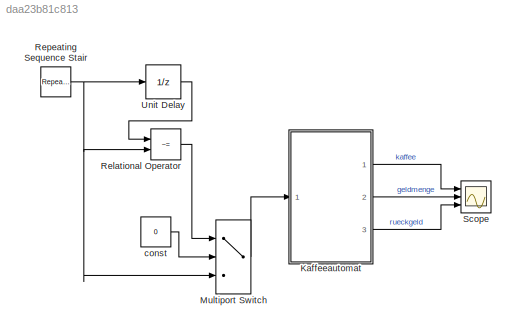
MODEL slx_daa23b81c813
KIND model
CONFIG AbsTol = auto
CONFIG FixedStep = auto
CONFIG MaxStep = auto
CONFIG MinStep = auto
CONFIG RelTol = 1e-3
CONFIG SampleTimeConstraint = Unconstrained
CONFIG Solver = FixedStepAuto
CONFIG SolverMode = Auto
CONFIG SolverName = FixedStepAuto
CONFIG StartTime = 0.0
CONFIG StopTime = 60
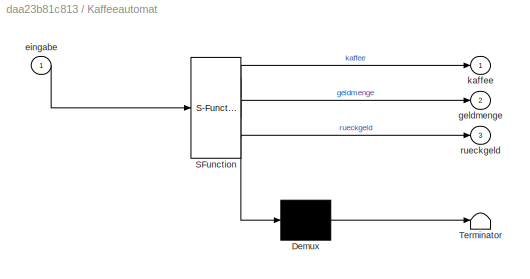
BLOCK [SubSystem] Kaffeeautomat
  ErrorFcn = Stateflow.Translate.translate
  PermitHierarchicalResolution = ExplicitOnly
  Ports = [1, 3]
  RequestExecContextInheritance = off
  SFBlockType = Chart
  TreatAsAtomicUnit = on
  Variant = off
BLOCK [Demux] Kaffeeautomat/ Demux 
  Outputs = 1
  Ports = [1, 1]
BLOCK [S-Function] Kaffeeautomat/ SFunction 
  EnableBusSupport = on
  FunctionName = sf_sfun
  PortCounts = [1 4]
  Ports = [1, 4]
  SFunctionDeploymentMode = off
  Tag = Stateflow S-Function kaffeeautomat_3 3
BLOCK [Terminator] Kaffeeautomat/ Terminator 
BLOCK [Inport] Kaffeeautomat/eingabe
  IconDisplay = Port number
BLOCK [Outport] Kaffeeautomat/geldmenge
  IconDisplay = Port number
  Port = 2
BLOCK [Outport] Kaffeeautomat/kaffee
  IconDisplay = Port number
BLOCK [Outport] Kaffeeautomat/rueckgeld
  IconDisplay = Port number
  Port = 3
BLOCK [MultiPortSwitch] Multiport Switch
  DataPortOrder = Zero-based contiguous
  InputSameDT = off
  Inputs = 2
  Ports = [3, 1]
  SaturateOnIntegerOverflow = off
BLOCK [RelationalOperator] Relational Operator
  InputSameDT = off
  Operator = ~=
  OutDataTypeStr = boolean
  Ports = [2, 1]
BLOCK [Reference] Repeating Sequence Stair  REF=simulink/Sources/Repeating
Sequence
Stair
  Ports = [0, 1]
  SourceBlock = simulink/Sources/Repeating\nSequence\nStair
  SourceType = Repeating Sequence Stair
BLOCK [Scope] Scope
  NumInputPorts = 3
  Ports = [3]
  ScopeSpecificationString = Simulink.scopes.TimeScopeBlockCfg('CurrentConfiguration', extmgr.ConfigurationSet(extmgr.Configuration('Core','General UI',true),extmgr.Configuration('Core','Source UI',true),extmgr.Configuration('Sources','WiredSimulink',true),extmgr.Configuration('Visuals','Time Domain',true,'SerializedDisplays',{struct('MinYLimReal','-0.125','MaxYLimReal','1.125','YLabelReal','','MinYLimMag','0.00000','MaxYLimM...<+2630ch>
BLOCK [UnitDelay] Unit Delay
  InputProcessing = Elements as channels (sample based)
  SampleTime = -1
BLOCK [Constant] const 
  Value = 0
LINE Kaffeeautomat:1 -> Scope:1
LINE Kaffeeautomat:2 -> Scope:2
LINE Kaffeeautomat:3 -> Scope:3
LINE Multiport Switch:1 -> Kaffeeautomat:1
LINE Relational Operator:1 -> Multiport Switch:1
NET Repeating Sequence Stair:1 -> Multiport Switch:3, Relational Operator:2, Unit Delay:1
LINE Unit Delay:1 -> Relational Operator:1
LINE const :1 -> Multiport Switch:2
note: NET lines group one-source signal fan-out (src -> all destinations, sorted); 1:1 wires keep LINE
CHART Kaffeeautomat states=2 transitions=4
  STATE_LABEL 'Kein_Kaffee/\nentry: kaffee=0;\n rueckgeld=0;\n geldmenge=geldmenge+eingabe;\n'
  STATE_LABEL 'Kaffee/\nentry: kaffee=1;\nentry: rueckgeld=geldmenge-50;'
